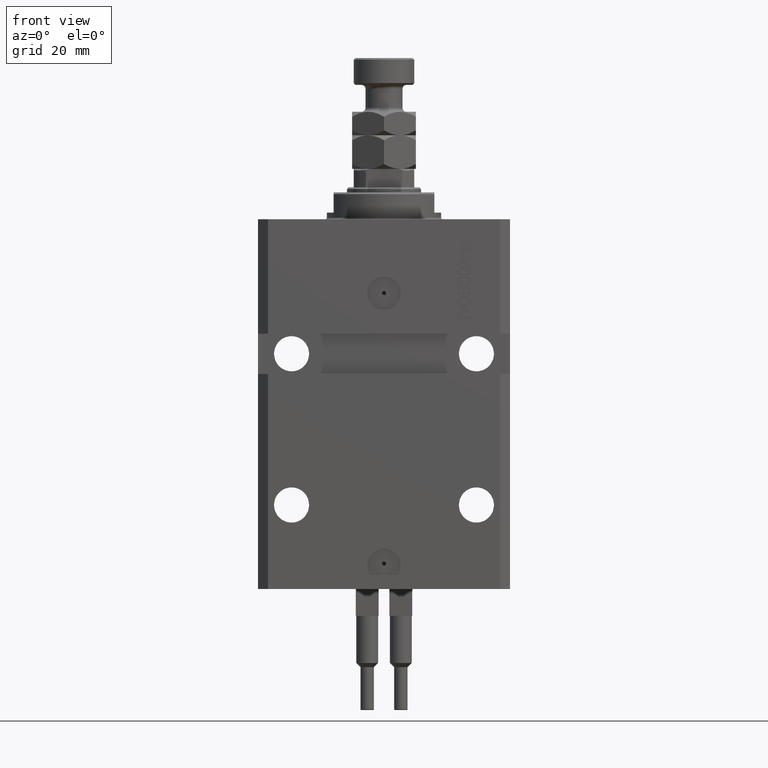
[diagram: clean part render]
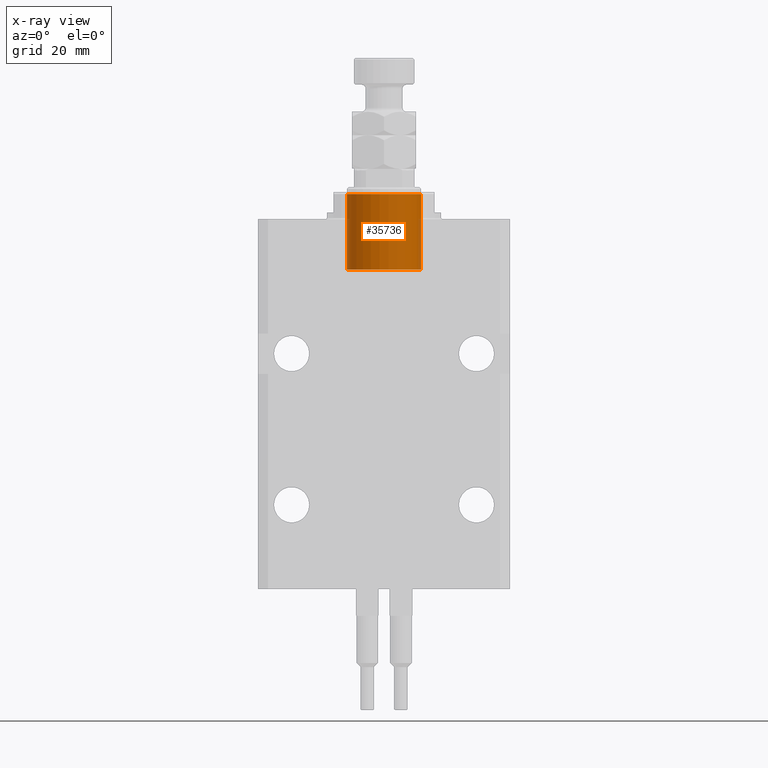
[diagram: x-ray — body ghosted, one internal face saturated and labeled with its STEP entity id]
A machine part, front view, then the same camera in x-ray: the body is ghosted and one INTERNAL B-rep face — a face not visible from any outside direction — is saturated and labeled: STEP entity #35736.
In plain terms, the highlighted cylindrical surface (partial cylindrical patch) has radius 11 mm, axis along (0, -0, 1).
Its self-contained STEP definition (entity closure, byte-faithful):
#28 = DIRECTION ( 'NONE',  ( -1.000000000000000000, 0.000000000000000000, 0.000000000000000000 ) ) ;
#4940 = CARTESIAN_POINT ( 'NONE',  ( 11.00000000000000000, 1.347111479062088405E-15, -7.500000000000000000 ) ) ;
#5654 = CARTESIAN_POINT ( 'NONE',  ( 0.000000000000000000, 0.000000000000000000, -7.500000000000000000 ) ) ;
#7855 = VECTOR ( 'NONE', #43352, 1000.000000000000000 ) ;
#8294 = VERTEX_POINT ( 'NONE', #25389 ) ;
#8495 = EDGE_CURVE ( 'NONE', #36934, #22435, #17115, .T. ) ;
#8580 = EDGE_CURVE ( 'NONE', #8294, #36934, #49312, .T. ) ;
#8637 = AXIS2_PLACEMENT_3D ( 'NONE', #30014, #14743, #33826 ) ;
#9221 = DIRECTION ( 'NONE',  ( 0.000000000000000000, 0.000000000000000000, -1.000000000000000000 ) ) ;
#9235 = CARTESIAN_POINT ( 'NONE',  ( -11.00000000000000000, 0.000000000000000000, 15.00000000000000000 ) ) ;
#11250 = EDGE_LOOP ( 'NONE', ( #22032, #20665, #30328, #20115 ) ) ;
#13851 = EDGE_CURVE ( 'NONE', #48250, #22435, #38916, .T. ) ;
#14743 = DIRECTION ( 'NONE',  ( 0.000000000000000000, 0.000000000000000000, -1.000000000000000000 ) ) ;
#14757 = CARTESIAN_POINT ( 'NONE',  ( -11.00000000000000000, 0.000000000000000000, 15.00000000000000000 ) ) ;
#15617 = CARTESIAN_POINT ( 'NONE',  ( 11.00000000000000000, 1.347111479062088405E-15, 15.00000000000000000 ) ) ;
#16792 = AXIS2_PLACEMENT_3D ( 'NONE', #45613, #42043, #28 ) ;
#17115 = LINE ( 'NONE', #9235, #7855 ) ;
#20115 = ORIENTED_EDGE ( 'NONE', *, *, #8495, .F. ) ;
#20180 = AXIS2_PLACEMENT_3D ( 'NONE', #5654, #9221, #32881 ) ;
#20665 = ORIENTED_EDGE ( 'NONE', *, *, #39827, .T. ) ;
#22032 = ORIENTED_EDGE ( 'NONE', *, *, #8580, .F. ) ;
#22435 = VERTEX_POINT ( 'NONE', #35505 ) ;
#25389 = CARTESIAN_POINT ( 'NONE',  ( 11.00000000000000000, 1.347111479062088405E-15, 15.00000000000000000 ) ) ;
#27086 = DIRECTION ( 'NONE',  ( -0.000000000000000000, -0.000000000000000000, -1.000000000000000000 ) ) ;
#27571 = LINE ( 'NONE', #15617, #48682 ) ;
#30014 = CARTESIAN_POINT ( 'NONE',  ( 0.000000000000000000, 0.000000000000000000, 15.00000000000000000 ) ) ;
#30328 = ORIENTED_EDGE ( 'NONE', *, *, #13851, .T. ) ;
#32881 = DIRECTION ( 'NONE',  ( -1.000000000000000000, 0.000000000000000000, 0.000000000000000000 ) ) ;
#33826 = DIRECTION ( 'NONE',  ( -1.000000000000000000, 0.000000000000000000, 0.000000000000000000 ) ) ;
#33890 = FACE_OUTER_BOUND ( 'NONE', #11250, .T. ) ;
#35505 = CARTESIAN_POINT ( 'NONE',  ( -11.00000000000000000, 0.000000000000000000, -7.500000000000000000 ) ) ;
#35736 = ADVANCED_FACE ( 'NONE', ( #33890 ), #37715, .F. ) ;
#36934 = VERTEX_POINT ( 'NONE', #14757 ) ;
#37715 = CYLINDRICAL_SURFACE ( 'NONE', #16792, 11.00000000000000000 ) ;
#38916 = CIRCLE ( 'NONE', #20180, 11.00000000000000000 ) ;
#39827 = EDGE_CURVE ( 'NONE', #8294, #48250, #27571, .T. ) ;
#42043 = DIRECTION ( 'NONE',  ( -0.000000000000000000, -0.000000000000000000, -1.000000000000000000 ) ) ;
#43352 = DIRECTION ( 'NONE',  ( -0.000000000000000000, -0.000000000000000000, -1.000000000000000000 ) ) ;
#45613 = CARTESIAN_POINT ( 'NONE',  ( 0.000000000000000000, 0.000000000000000000, 15.00000000000000000 ) ) ;
#48250 = VERTEX_POINT ( 'NONE', #4940 ) ;
#48682 = VECTOR ( 'NONE', #27086, 1000.000000000000000 ) ;
#49312 = CIRCLE ( 'NONE', #8637, 11.00000000000000000 ) ;